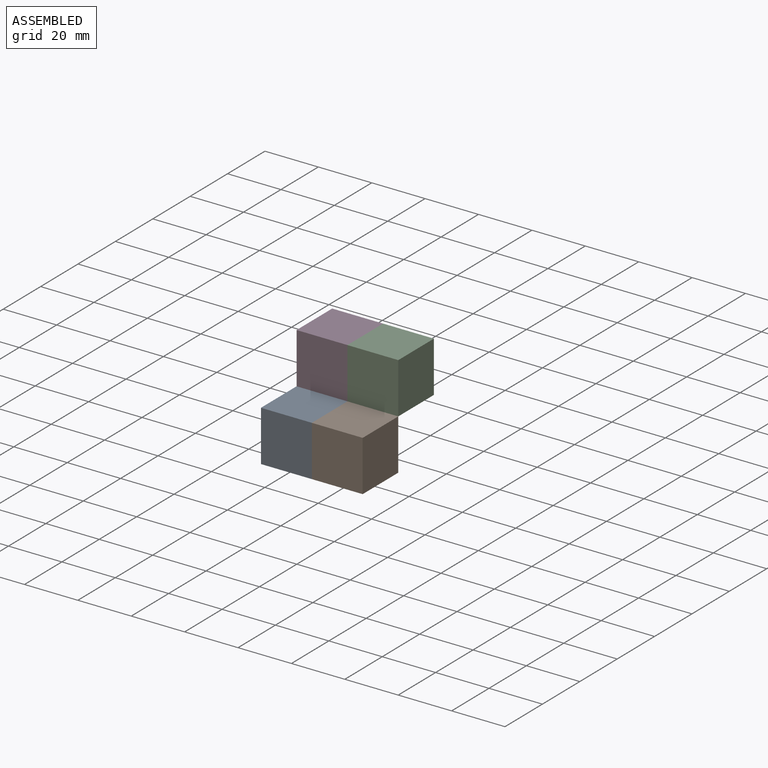
[diagram: assembled view]
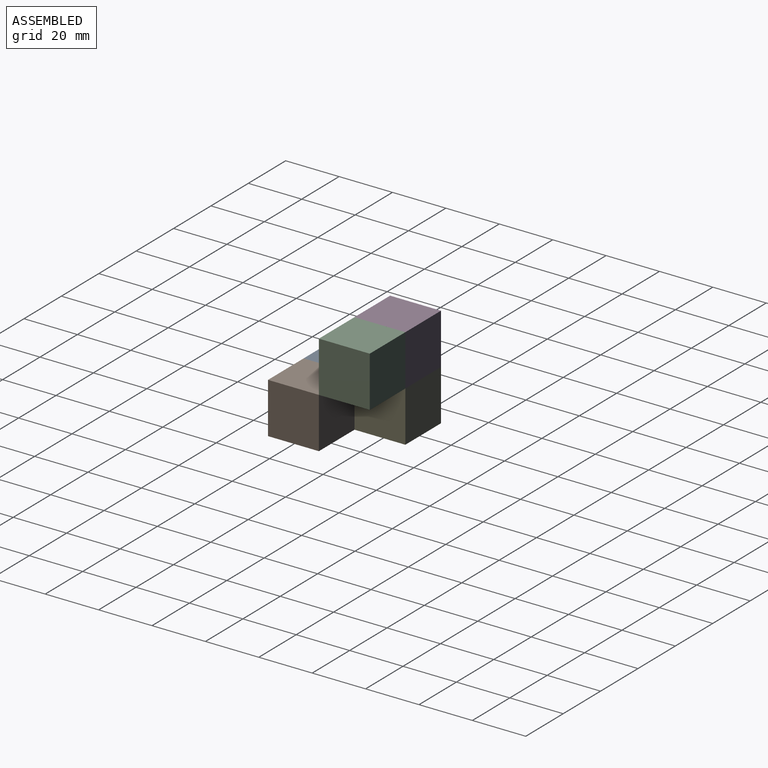
[diagram: assembled view, second angle]
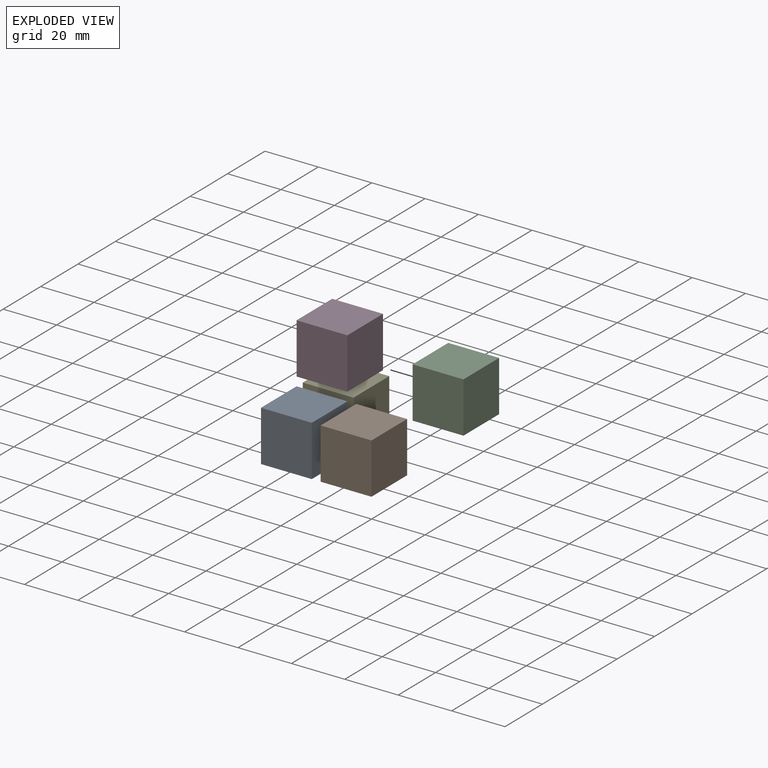
[diagram: exploded view]
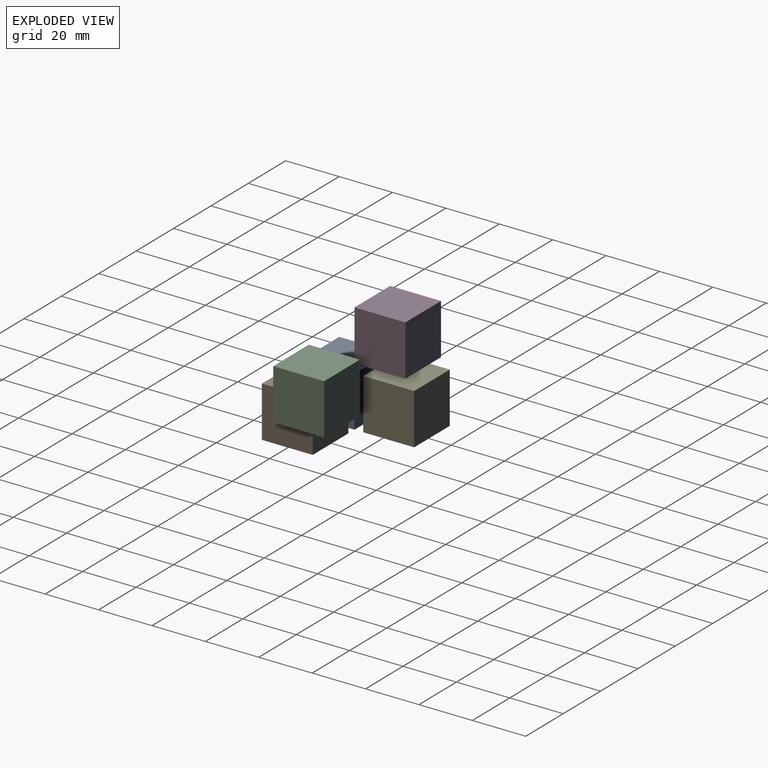
[diagram: exploded view, second angle]
ASSEMBLY  parts=5 mates=4
PART A: 6 faces, bbox 19.1x19.1x19.1 mm
  f0: plane 19.05x19.05mm, normal (0,0,-1), area 362.9mm2, adj f1,f3,f4,f5
  f1: plane 19.05x19.05mm, normal (1,0,0), area 362.9mm2, adj f0,f2,f4,f5
  f2: plane 19.05x19.05mm, normal (0,0,1), area 362.9mm2, adj f1,f3,f4,f5
  f3: plane 19.05x19.05mm, normal (-1,0,0), area 362.9mm2, adj f0,f2,f4,f5
  f4: plane 19.05x19.05mm, normal (0,-1,0), area 362.9mm2, adj f0,f1,f2,f3
  f5: plane 19.05x19.05mm, normal (0,1,0), area 362.9mm2, adj f0,f1,f2,f3
PART B: same geometry as A
PART C: same geometry as A
PART D: same geometry as A
PART E: same geometry as A
PLACE A t=(0.06,-9.47,0.03)mm
PLACE B t=(19.11,-9.47,0.03)mm
PLACE C t=(19.11,9.58,19.08)mm
PLACE D t=(0.06,9.58,19.08)mm
PLACE E t=(0.06,9.58,0.03)mm fixed
MATE fastened A.f1 <-> B.f3  axis (1,0,0) through (9.58,-19,0.03)mm
MATE fastened E.f4 <-> A.f5  axis (0,-1,0) through (0.06,-9.47,0.03)mm
MATE fastened E.f2 <-> D.f0  axis (0,0,1) through (0.06,0.05,9.56)mm
MATE fastened D.f1 <-> C.f3  axis (1,0,0) through (9.58,0.05,19.08)mm
